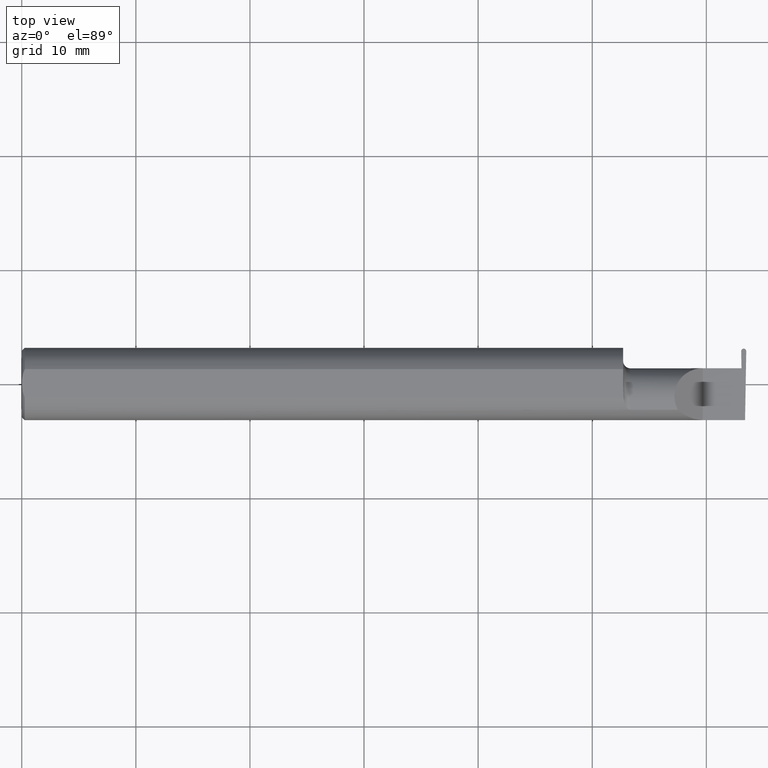
[diagram: clean part render]
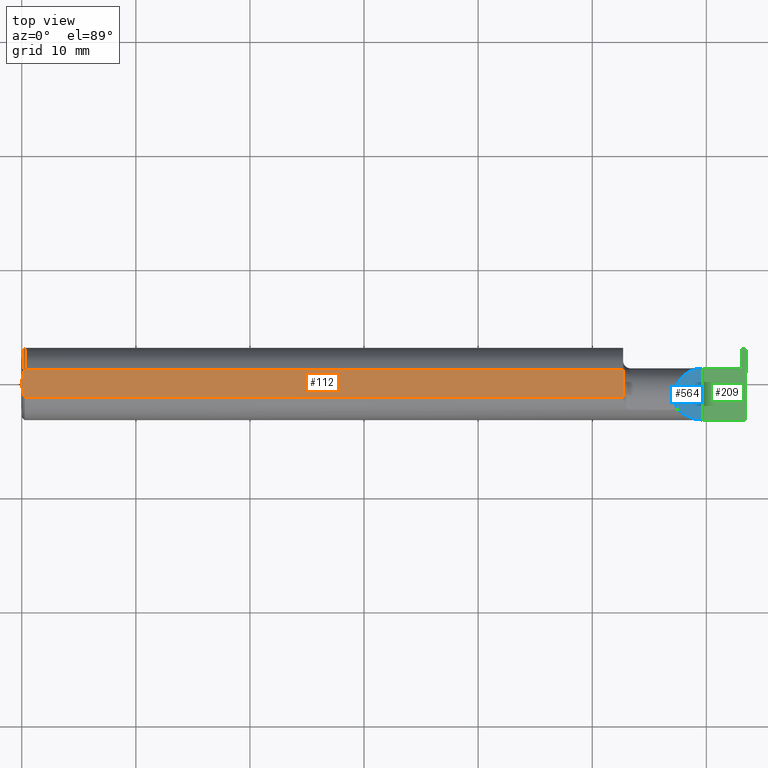
[diagram: same view with three faces highlighted in distinct colors, each labeled with its STEP entity id]
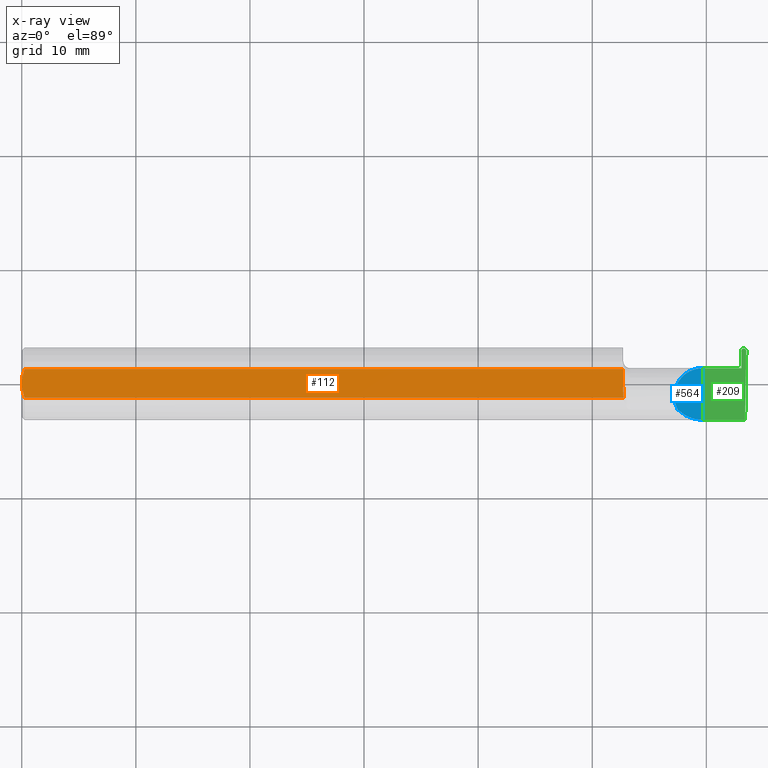
[diagram: x-ray of the same camera — body ghosted, the three highlighted faces saturated]
A machine part, top view with three faces highlighted in distinct colors.
The next image is the same camera in x-ray (body ghosted, the three faces saturated) — at least one of them is partly hidden behind the body in this view.
Their STEP definitions:

[orange] entity #112 — the highlighted planar face has unit normal (0, 0, 1).
#12 = CARTESIAN_POINT ( 'NONE',  ( 2.076184456069788187, -0.03277259381710939667, 0.1149999999999999356 ) ) ;
#34 = VERTEX_POINT ( 'NONE', #291 ) ;
#68 = VECTOR ( 'NONE', #306, 39.37007874015748143 ) ;
#75 = VERTEX_POINT ( 'NONE', #473 ) ;
#94 = PLANE ( 'NONE',  #432 ) ;
#97 = CARTESIAN_POINT ( 'NONE',  ( 0.006956794985978487743, -0.04122489957750442163, 0.1149999999999999356 ) ) ;
#112 = ADVANCED_FACE ( 'NONE', ( #370 ), #94, .T. ) ;
#139 = EDGE_CURVE ( 'NONE', #75, #452, #510, .T. ) ;
#158 = CARTESIAN_POINT ( 'NONE',  ( 2.076278290187167919, -0.04898979485481608914, 0.1149999999999999217 ) ) ;
#165 = CARTESIAN_POINT ( 'NONE',  ( 1.541666659510484467E-16, -0.008419750986449443114, 0.1149999999999999356 ) ) ;
#168 = VERTEX_POINT ( 'NONE', #700 ) ;
#185 = LINE ( 'NONE', #458, #68 ) ;
#187 = LINE ( 'NONE', #627, #675 ) ;
#201 = ORIENTED_EDGE ( 'NONE', *, *, #562, .T. ) ;
#203 = B_SPLINE_CURVE_WITH_KNOTS ( 'NONE', 3,
 ( #601, #501, #12, #341, #508, #231 ),
 .UNSPECIFIED., .F., .F.,
 ( 4, 2, 4 ),
 ( 0.009319464280412734225, 0.009934044568948269954, 0.01054862485748380568 ),
 .UNSPECIFIED. ) ;
#206 = CARTESIAN_POINT ( 'NONE',  ( 1.642610067308552155E-16, 0.01684316307400865464, 0.1149999999999999217 ) ) ;
#208 = VERTEX_POINT ( 'NONE', #158 ) ;
#231 = CARTESIAN_POINT ( 'NONE',  ( 2.075000000000000178, -0.0003651515414569473403, 0.1149999999999999217 ) ) ;
#242 = CARTESIAN_POINT ( 'NONE',  ( 0.000000000000000000, 3.414809992080329023E-17, 0.1149999999999999217 ) ) ;
#249 = DIRECTION ( 'NONE',  ( 0.000000000000000000, 0.000000000000000000, 1.000000000000000000 ) ) ;
#267 = LINE ( 'NONE', #381, #614 ) ;
#277 = ORIENTED_EDGE ( 'NONE', *, *, #398, .F. ) ;
#291 = CARTESIAN_POINT ( 'NONE',  ( 2.075000000000000178, -0.0003651515414569473403, 0.1149999999999999217 ) ) ;
#306 = DIRECTION ( 'NONE',  ( 1.000000000000000000, 0.000000000000000000, 0.000000000000000000 ) ) ;
#310 = CARTESIAN_POINT ( 'NONE',  ( 0.003880275146595849479, 0.03337499979622342988, 0.1149999999999999217 ) ) ;
#341 = CARTESIAN_POINT ( 'NONE',  ( 2.075474906351709059, -0.01657217611495833895, 0.1149999999999999217 ) ) ;
#342 = VERTEX_POINT ( 'NONE', #589 ) ;
#369 = ORIENTED_EDGE ( 'NONE', *, *, #547, .T. ) ;
#370 = FACE_OUTER_BOUND ( 'NONE', #515, .T. ) ;
#371 = CARTESIAN_POINT ( 'NONE',  ( 0.01000000000000042348, 0.04898979485566374442, 0.1149999999999999217 ) ) ;
#374 = CARTESIAN_POINT ( 'NONE',  ( 0.000000000000000000, 3.414809992080329023E-17, 0.1149999999999999217 ) ) ;
#381 = CARTESIAN_POINT ( 'NONE',  ( 0.000000000000000000, 0.04898979485566374442, 0.1149999999999999217 ) ) ;
#398 = EDGE_CURVE ( 'NONE', #452, #342, #477, .T. ) ;
#423 = DIRECTION ( 'NONE',  ( -1.000000000000000000, -0.000000000000000000, -0.000000000000000000 ) ) ;
#430 = CARTESIAN_POINT ( 'NONE',  ( 0.004414142251465132810, -0.03315347577847933824, 0.1149999999999999356 ) ) ;
#432 = AXIS2_PLACEMENT_3D ( 'NONE', #527, #249, #465 ) ;
#452 = VERTEX_POINT ( 'NONE', #242 ) ;
#458 = CARTESIAN_POINT ( 'NONE',  ( 0.000000000000000000, -0.04898979485566374442, 0.1149999999999999217 ) ) ;
#465 = DIRECTION ( 'NONE',  ( 1.000000000000000000, 0.000000000000000000, -0.000000000000000000 ) ) ;
#473 = CARTESIAN_POINT ( 'NONE',  ( 0.01000000000000042348, -0.04898979485566374442, 0.1149999999999999217 ) ) ;
#477 = B_SPLINE_CURVE_WITH_KNOTS ( 'NONE', 3,
 ( #577, #206, #310, #371 ),
 .UNSPECIFIED., .F., .F.,
 ( 4, 4 ),
 ( 0.002331518380383306322, 0.003601362264757408584 ),
 .UNSPECIFIED. ) ;
#501 = CARTESIAN_POINT ( 'NONE',  ( 2.076395249340555971, -0.04087966525207804847, 0.1149999999999999356 ) ) ;
#505 = ORIENTED_EDGE ( 'NONE', *, *, #139, .F. ) ;
#508 = CARTESIAN_POINT ( 'NONE',  ( 2.074999999999999734, -0.008475349815580169449, 0.1149999999999999356 ) ) ;
#510 = B_SPLINE_CURVE_WITH_KNOTS ( 'NONE', 3,
 ( #586, #97, #430, #537, #165, #374 ),
 .UNSPECIFIED., .F., .F.,
 ( 4, 2, 4 ),
 ( 0.001061950514642623312, 0.001696734447512964709, 0.002331518380383306322 ),
 .UNSPECIFIED. ) ;
#513 = ORIENTED_EDGE ( 'NONE', *, *, #668, .T. ) ;
#515 = EDGE_LOOP ( 'NONE', ( #201, #513, #369, #670, #277, #505 ) ) ;
#527 = CARTESIAN_POINT ( 'NONE',  ( 2.753179778023443269, 0.1250000000000000278, 0.1149999999999999217 ) ) ;
#537 = CARTESIAN_POINT ( 'NONE',  ( 0.0009328476361608245343, -0.01672844127736827086, 0.1149999999999999217 ) ) ;
#547 = EDGE_CURVE ( 'NONE', #34, #168, #187, .T. ) ;
#562 = EDGE_CURVE ( 'NONE', #75, #208, #185, .T. ) ;
#566 = DIRECTION ( 'NONE',  ( 1.257036449194457259E-16, 1.000000000000000000, -0.000000000000000000 ) ) ;
#577 = CARTESIAN_POINT ( 'NONE',  ( 0.000000000000000000, 3.414809992080329023E-17, 0.1149999999999999217 ) ) ;
#586 = CARTESIAN_POINT ( 'NONE',  ( 0.01000000000000042348, -0.04898979485566374442, 0.1149999999999999217 ) ) ;
#589 = CARTESIAN_POINT ( 'NONE',  ( 0.01000000000000042348, 0.04898979485566374442, 0.1149999999999999217 ) ) ;
#601 = CARTESIAN_POINT ( 'NONE',  ( 2.076278290187167919, -0.04898979485481608914, 0.1149999999999999217 ) ) ;
#605 = EDGE_CURVE ( 'NONE', #168, #342, #267, .T. ) ;
#614 = VECTOR ( 'NONE', #423, 39.37007874015748143 ) ;
#627 = CARTESIAN_POINT ( 'NONE',  ( 2.075000000000000178, 0.1250000000000001110, 0.1149999999999999217 ) ) ;
#668 = EDGE_CURVE ( 'NONE', #208, #34, #203, .T. ) ;
#670 = ORIENTED_EDGE ( 'NONE', *, *, #605, .T. ) ;
#675 = VECTOR ( 'NONE', #566, 39.37007874015748143 ) ;
#700 = CARTESIAN_POINT ( 'NONE',  ( 2.075000000000000178, 0.04898979485566374442, 0.1149999999999999217 ) ) ;

[blue] entity #564 — the highlighted planar face has unit normal (-0.7071, 0, -0.7071).
#22 = EDGE_CURVE ( 'NONE', #37, #180, #174, .T. ) ;
#37 = VERTEX_POINT ( 'NONE', #100 ) ;
#77 =( BOUNDED_CURVE ( )  B_SPLINE_CURVE ( 3, ( #620, #578, #568, #631 ),
 .UNSPECIFIED., .F., .T. ) 
 B_SPLINE_CURVE_WITH_KNOTS ( ( 4, 4 ),
 ( 5.789722842198293584, 7.853981633974482790 ),
 .UNSPECIFIED. ) 
 CURVE ( )  GEOMETRIC_REPRESENTATION_ITEM ( )  RATIONAL_B_SPLINE_CURVE ( ( 1.000000000000000000, 0.6753281001527238203, 0.6753281001527238203, 1.000000000000000000 ) ) 
 REPRESENTATION_ITEM ( '' )  );
#100 = CARTESIAN_POINT ( 'NONE',  ( 2.350000000000000089, -0.1250000000000000278, 1.836970198721028825E-17 ) ) ;
#104 = EDGE_LOOP ( 'NONE', ( #382, #453, #641 ) ) ;
#131 = LINE ( 'NONE', #140, #281 ) ;
#140 = CARTESIAN_POINT ( 'NONE',  ( 2.350000000000000089, -0.2500000000000000555, 1.836970198721028825E-17 ) ) ;
#174 =( BOUNDED_CURVE ( )  B_SPLINE_CURVE ( 3, ( #178, #295, #516, #571 ),
 .UNSPECIFIED., .F., .T. ) 
 B_SPLINE_CURVE_WITH_KNOTS ( ( 4, 4 ),
 ( 4.712388980384689674, 5.474523801125204869 ),
 .UNSPECIFIED. ) 
 CURVE ( )  GEOMETRIC_REPRESENTATION_ITEM ( )  RATIONAL_B_SPLINE_CURVE ( ( 1.000000000000000000, 0.9521787881681385013, 0.9521787881681385013, 1.000000000000000000 ) ) 
 REPRESENTATION_ITEM ( '' )  );
#178 = CARTESIAN_POINT ( 'NONE',  ( 2.350000000000000089, -0.1250000000000000278, 1.836970198721028825E-17 ) ) ;
#180 = VERTEX_POINT ( 'NONE', #389 ) ;
#281 = VECTOR ( 'NONE', #514, 39.37007874015748143 ) ;
#295 = CARTESIAN_POINT ( 'NONE',  ( 2.317450832343515899, -0.1250000000000000278, 0.03254916765648410010 ) ) ;
#326 = VERTEX_POINT ( 'NONE', #531 ) ;
#349 = PLANE ( 'NONE',  #460 ) ;
#382 = ORIENTED_EDGE ( 'NONE', *, *, #450, .F. ) ;
#389 = CARTESIAN_POINT ( 'NONE',  ( 2.263691591372603895, -0.09042045454545456773, 0.08630840862739504182 ) ) ;
#410 = CARTESIAN_POINT ( 'NONE',  ( 2.350000000000000089, -0.2500000000000000555, 1.836970198721028825E-17 ) ) ;
#450 = EDGE_CURVE ( 'NONE', #180, #326, #77, .T. ) ;
#453 = ORIENTED_EDGE ( 'NONE', *, *, #22, .F. ) ;
#460 = AXIS2_PLACEMENT_3D ( 'NONE', #410, #563, #623 ) ;
#514 = DIRECTION ( 'NONE',  ( -0.000000000000000000, 1.000000000000000000, -0.000000000000000000 ) ) ;
#516 = CARTESIAN_POINT ( 'NONE',  ( 2.287236475649208511, -0.1128945894460739036, 0.06276352435079098069 ) ) ;
#517 = EDGE_CURVE ( 'NONE', #37, #326, #131, .T. ) ;
#523 = FACE_OUTER_BOUND ( 'NONE', #104, .T. ) ;
#531 = CARTESIAN_POINT ( 'NONE',  ( 2.350000000000000089, 0.05399999999999997163, 5.204748896376245769E-17 ) ) ;
#563 = DIRECTION ( 'NONE',  ( -0.7071067811865439090, 0.000000000000000000, -0.7071067811865511255 ) ) ;
#564 = ADVANCED_FACE ( 'NONE', ( #523 ), #349, .F. ) ;
#568 = CARTESIAN_POINT ( 'NONE',  ( 2.266956372099407258, 0.05400000000000000633, 0.08304362790059185984 ) ) ;
#571 = CARTESIAN_POINT ( 'NONE',  ( 2.263691591372603895, -0.09042045454545456773, 0.08630840862739504182 ) ) ;
#578 = CARTESIAN_POINT ( 'NONE',  ( 2.224355642859857873, -0.01728409361947884360, 0.1256443571401406334 ) ) ;
#620 = CARTESIAN_POINT ( 'NONE',  ( 2.263691591372603895, -0.09042045454545456773, 0.08630840862739504182 ) ) ;
#623 = DIRECTION ( 'NONE',  ( -0.7071067811865511255, 0.000000000000000000, 0.7071067811865439090 ) ) ;
#631 = CARTESIAN_POINT ( 'NONE',  ( 2.350000000000000089, 0.05399999999999997163, 5.204748896376245769E-17 ) ) ;
#641 = ORIENTED_EDGE ( 'NONE', *, *, #517, .T. ) ;

[green] entity #209 — the highlighted planar face has unit normal (-0, 0, -1).
#15 = EDGE_CURVE ( 'NONE', #87, #37, #658, .T. ) ;
#27 = LINE ( 'NONE', #247, #246 ) ;
#37 = VERTEX_POINT ( 'NONE', #100 ) ;
#47 = DIRECTION ( 'NONE',  ( -1.000000000000000000, 0.000000000000000000, 1.224646799147352468E-16 ) ) ;
#50 = CARTESIAN_POINT ( 'NONE',  ( 2.500000000000000000, -0.2500000000000000555, 0.000000000000000000 ) ) ;
#58 = ORIENTED_EDGE ( 'NONE', *, *, #224, .F. ) ;
#66 = CARTESIAN_POINT ( 'NONE',  ( 2.482396552658129973, 0.1181413263005396674, 1.815796599807465209E-17 ) ) ;
#69 = EDGE_CURVE ( 'NONE', #683, #132, #480, .T. ) ;
#79 = DIRECTION ( 'NONE',  ( -0.01745240643727528213, -0.9998476951563914916, 0.000000000000000000 ) ) ;
#80 =( BOUNDED_CURVE ( )  B_SPLINE_CURVE ( 3, ( #230, #662, #173, #426 ),
 .UNSPECIFIED., .F., .T. ) 
 B_SPLINE_CURVE_WITH_KNOTS ( ( 4, 4 ),
 ( 1.677524580234106333, 3.253450286950926529 ),
 .UNSPECIFIED. ) 
 CURVE ( )  GEOMETRIC_REPRESENTATION_ITEM ( )  RATIONAL_B_SPLINE_CURVE ( ( 1.000000000000000000, 0.8035272986452476340, 0.8035272986452476340, 1.000000000000000000 ) ) 
 REPRESENTATION_ITEM ( '' )  );
#87 = VERTEX_POINT ( 'NONE', #141 ) ;
#91 = VECTOR ( 'NONE', #314, 39.37007874015748143 ) ;
#92 = EDGE_CURVE ( 'NONE', #524, #590, #152, .T. ) ;
#100 = CARTESIAN_POINT ( 'NONE',  ( 2.350000000000000089, -0.1250000000000000278, 1.836970198721028825E-17 ) ) ;
#117 = VERTEX_POINT ( 'NONE', #308 ) ;
#121 = CARTESIAN_POINT ( 'NONE',  ( 2.485980426908312779, 0.1220000000000002333, 1.771906798517136265E-17 ) ) ;
#131 = LINE ( 'NONE', #140, #281 ) ;
#132 = VERTEX_POINT ( 'NONE', #634 ) ;
#140 = CARTESIAN_POINT ( 'NONE',  ( 2.350000000000000089, -0.2500000000000000555, 1.836970198721028825E-17 ) ) ;
#141 = CARTESIAN_POINT ( 'NONE',  ( 2.495842809704562626, -0.1250000000000000000, 0.000000000000000000 ) ) ;
#152 = LINE ( 'NONE', #521, #445 ) ;
#169 = LINE ( 'NONE', #496, #474 ) ;
#171 = ORIENTED_EDGE ( 'NONE', *, *, #597, .F. ) ;
#173 = CARTESIAN_POINT ( 'NONE',  ( 2.496502983091687611, 0.1220000000000001916, -1.771906798517135649E-17 ) ) ;
#195 =( BOUNDED_CURVE ( )  B_SPLINE_CURVE ( 3, ( #340, #121, #66, #280 ),
 .UNSPECIFIED., .F., .F. ) 
 B_SPLINE_CURVE_WITH_KNOTS ( ( 4, 4 ),
 ( 6.171327673818449711, 7.747253380535275902 ),
 .UNSPECIFIED. ) 
 CURVE ( )  GEOMETRIC_REPRESENTATION_ITEM ( )  RATIONAL_B_SPLINE_CURVE ( ( 1.000000000000000000, 0.8035272986452463018, 0.8035272986452463018, 1.000000000000000000 ) ) 
 REPRESENTATION_ITEM ( '' )  );
#204 = ORIENTED_EDGE ( 'NONE', *, *, #285, .T. ) ;
#209 = ADVANCED_FACE ( 'NONE', ( #278 ), #380, .F. ) ;
#224 = EDGE_CURVE ( 'NONE', #326, #683, #169, .T. ) ;
#230 = CARTESIAN_POINT ( 'NONE',  ( 2.499991849855255133, 0.1126983510377570219, 0.000000000000000000 ) ) ;
#240 = LINE ( 'NONE', #404, #526 ) ;
#241 = CARTESIAN_POINT ( 'NONE',  ( 2.491130782529545673, 0.1219999999999999835, 0.000000000000000000 ) ) ;
#246 = VECTOR ( 'NONE', #79, 39.37007874015747433 ) ;
#247 = CARTESIAN_POINT ( 'NONE',  ( 2.499998666069249253, 0.1130888516759625262, 0.000000000000000000 ) ) ;
#253 = CARTESIAN_POINT ( 'NONE',  ( 2.483516143673287768, 0.05399999999999997163, 0.000000000000000000 ) ) ;
#256 = DIRECTION ( 'NONE',  ( 1.000000000000000000, -0.000000000000000000, -0.000000000000000000 ) ) ;
#278 = FACE_OUTER_BOUND ( 'NONE', #279, .T. ) ;
#279 = EDGE_LOOP ( 'NONE', ( #603, #204, #171, #484, #58, #449, #549, #312, #544 ) ) ;
#280 = CARTESIAN_POINT ( 'NONE',  ( 2.482491560144744369, 0.1126983510377570080, 0.000000000000000000 ) ) ;
#281 = VECTOR ( 'NONE', #514, 39.37007874015748143 ) ;
#285 = EDGE_CURVE ( 'NONE', #524, #117, #195, .T. ) ;
#308 = CARTESIAN_POINT ( 'NONE',  ( 2.482491560144744369, 0.1126983510377570080, 0.000000000000000000 ) ) ;
#312 = ORIENTED_EDGE ( 'NONE', *, *, #593, .F. ) ;
#313 = EDGE_CURVE ( 'NONE', #388, #590, #80, .T. ) ;
#314 = DIRECTION ( 'NONE',  ( 1.000000000000000000, -0.000000000000000000, -0.000000000000000000 ) ) ;
#326 = VERTEX_POINT ( 'NONE', #531 ) ;
#331 = AXIS2_PLACEMENT_3D ( 'NONE', #50, #604, #47 ) ;
#340 = CARTESIAN_POINT ( 'NONE',  ( 2.491130782529545673, 0.1219999999999999835, 0.000000000000000000 ) ) ;
#380 = PLANE ( 'NONE',  #331 ) ;
#388 = VERTEX_POINT ( 'NONE', #471 ) ;
#404 = CARTESIAN_POINT ( 'NONE',  ( 2.482484743930750248, 0.1130888516759625262, 0.000000000000000000 ) ) ;
#426 = CARTESIAN_POINT ( 'NONE',  ( 2.491352627470454273, 0.1219999999999999835, 0.000000000000000000 ) ) ;
#440 = CARTESIAN_POINT ( 'NONE',  ( 2.477329199258169634, 0.05399999999999997163, 0.000000000000000000 ) ) ;
#445 = VECTOR ( 'NONE', #256, 39.37007874015748143 ) ;
#449 = ORIENTED_EDGE ( 'NONE', *, *, #517, .F. ) ;
#471 = CARTESIAN_POINT ( 'NONE',  ( 2.499991849855255133, 0.1126983510377570219, 0.000000000000000000 ) ) ;
#474 = VECTOR ( 'NONE', #482, 39.37007874015748143 ) ;
#480 = LINE ( 'NONE', #253, #91 ) ;
#482 = DIRECTION ( 'NONE',  ( 1.000000000000000000, -1.257036449194457259E-16, 0.000000000000000000 ) ) ;
#484 = ORIENTED_EDGE ( 'NONE', *, *, #69, .F. ) ;
#496 = CARTESIAN_POINT ( 'NONE',  ( 2.075000000000000178, 0.05400000000000000633, 5.204748896376245769E-17 ) ) ;
#507 = DIRECTION ( 'NONE',  ( -1.000000000000000000, -0.000000000000000000, -0.000000000000000000 ) ) ;
#514 = DIRECTION ( 'NONE',  ( -0.000000000000000000, 1.000000000000000000, -0.000000000000000000 ) ) ;
#517 = EDGE_CURVE ( 'NONE', #37, #326, #131, .T. ) ;
#521 = CARTESIAN_POINT ( 'NONE',  ( -3.937007874019685528E-05, 0.1219999999999999835, 0.000000000000000000 ) ) ;
#524 = VERTEX_POINT ( 'NONE', #241 ) ;
#526 = VECTOR ( 'NONE', #618, 39.37007874015748854 ) ;
#531 = CARTESIAN_POINT ( 'NONE',  ( 2.350000000000000089, 0.05399999999999997163, 5.204748896376245769E-17 ) ) ;
#544 = ORIENTED_EDGE ( 'NONE', *, *, #313, .T. ) ;
#549 = ORIENTED_EDGE ( 'NONE', *, *, #15, .F. ) ;
#556 = CARTESIAN_POINT ( 'NONE',  ( 3.749399456654637998E-32, -0.1249999999999999861, 3.061616997868380183E-16 ) ) ;
#590 = VERTEX_POINT ( 'NONE', #671 ) ;
#593 = EDGE_CURVE ( 'NONE', #388, #87, #27, .T. ) ;
#597 = EDGE_CURVE ( 'NONE', #132, #117, #240, .T. ) ;
#603 = ORIENTED_EDGE ( 'NONE', *, *, #92, .F. ) ;
#604 = DIRECTION ( 'NONE',  ( -1.224646799147352468E-16, 0.000000000000000000, -1.000000000000000000 ) ) ;
#618 = DIRECTION ( 'NONE',  ( -0.01745240643727751992, 0.9998476951563912696, -0.000000000000000000 ) ) ;
#634 = CARTESIAN_POINT ( 'NONE',  ( 2.483516143673287768, 0.05399999999999997163, 0.000000000000000000 ) ) ;
#646 = VECTOR ( 'NONE', #507, 39.37007874015748143 ) ;
#658 = LINE ( 'NONE', #556, #646 ) ;
#662 = CARTESIAN_POINT ( 'NONE',  ( 2.500086857341869528, 0.1181413263005396674, -1.815796599807464593E-17 ) ) ;
#671 = CARTESIAN_POINT ( 'NONE',  ( 2.491352627470454273, 0.1219999999999999835, 0.000000000000000000 ) ) ;
#683 = VERTEX_POINT ( 'NONE', #440 ) ;